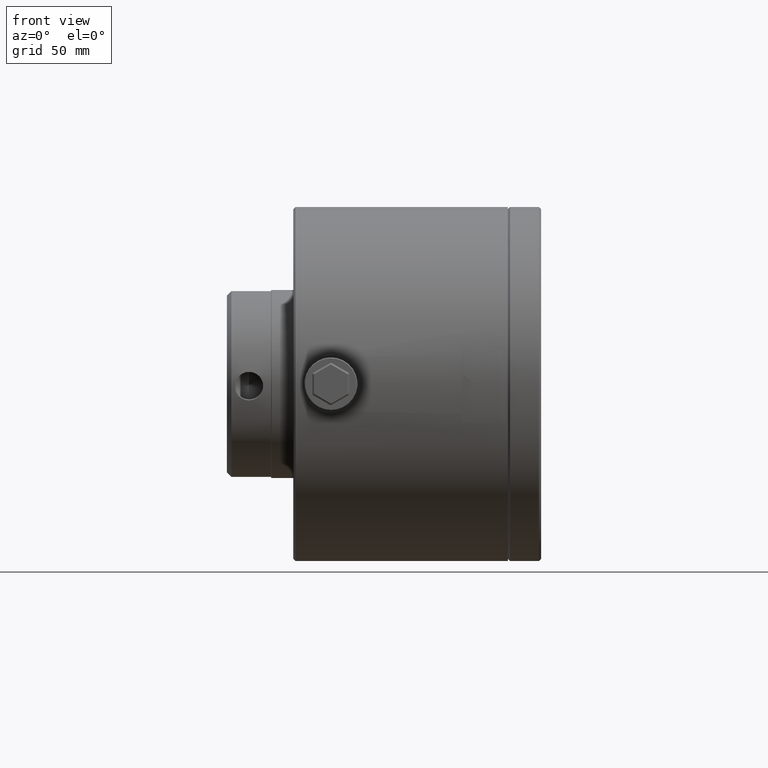
[diagram: clean part render]
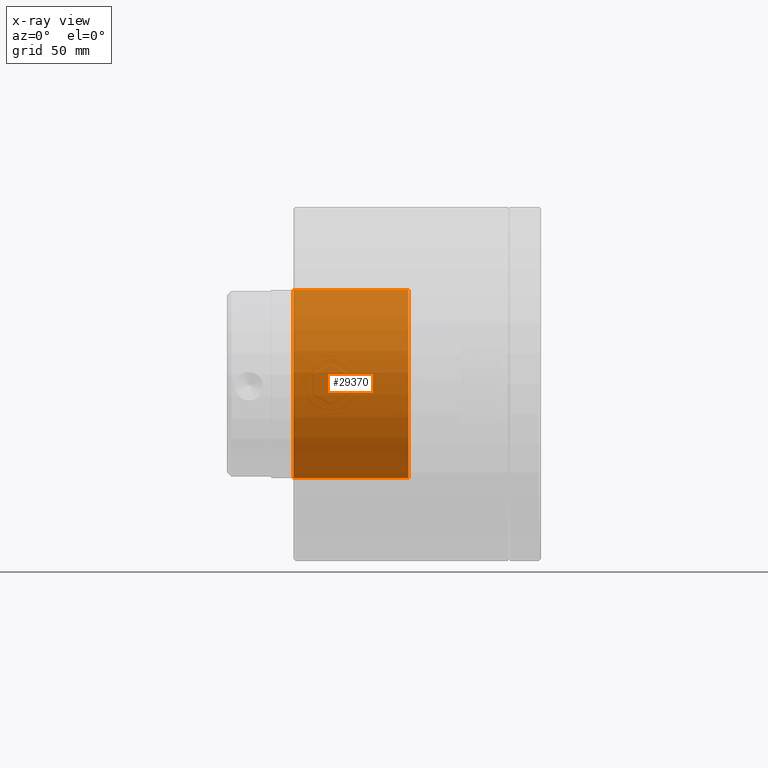
[diagram: x-ray — body ghosted, one internal face saturated and labeled with its STEP entity id]
A machine part, front view, then the same camera in x-ray: the body is ghosted and one INTERNAL B-rep face — a face not visible from any outside direction — is saturated and labeled: STEP entity #29370.
In plain terms, the highlighted cylindrical surface (partial cylindrical patch) has radius 42.5 mm, axis along (1, 0, 0).
Its self-contained STEP definition (entity closure, byte-faithful):
#959 = CIRCLE ( 'NONE', #1429, 42.50000000000000000 ) ;
#989 = CARTESIAN_POINT ( 'NONE',  ( -45.00000000000000000, 0.0000000000000000000, -42.50000000000000000 ) ) ;
#1429 = AXIS2_PLACEMENT_3D ( 'NONE', #20623, #10972, #27897 ) ;
#3011 = EDGE_CURVE ( 'NONE', #26853, #16350, #959, .T. ) ;
#4647 = DIRECTION ( 'NONE',  ( 0.0000000000000000000, 0.0000000000000000000, -1.000000000000000000 ) ) ;
#5441 = CARTESIAN_POINT ( 'NONE',  ( -97.00000000000000000, 5.204748896376250900E-015, 42.50000000000000000 ) ) ;
#6662 = VERTEX_POINT ( 'NONE', #30508 ) ;
#6755 = AXIS2_PLACEMENT_3D ( 'NONE', #7001, #7201, #4647 ) ;
#7001 = CARTESIAN_POINT ( 'NONE',  ( -97.00000000000000000, 0.0000000000000000000, 0.0000000000000000000 ) ) ;
#7201 = DIRECTION ( 'NONE',  ( 1.000000000000000000, 0.0000000000000000000, 0.0000000000000000000 ) ) ;
#8108 = EDGE_LOOP ( 'NONE', ( #12869, #19360, #16775, #30994 ) ) ;
#8776 = CYLINDRICAL_SURFACE ( 'NONE', #24889, 42.50000000000000000 ) ;
#9464 = VECTOR ( 'NONE', #19561, 1000.000000000000000 ) ;
#10972 = DIRECTION ( 'NONE',  ( -1.000000000000000000, -0.0000000000000000000, -0.0000000000000000000 ) ) ;
#12294 = VERTEX_POINT ( 'NONE', #22459 ) ;
#12413 = LINE ( 'NONE', #30345, #15051 ) ;
#12869 = ORIENTED_EDGE ( 'NONE', *, *, #22551, .F. ) ;
#13768 = EDGE_CURVE ( 'NONE', #12294, #26853, #12413, .T. ) ;
#13797 = CARTESIAN_POINT ( 'NONE',  ( -97.00000000000000000, 0.0000000000000000000, 0.0000000000000000000 ) ) ;
#13890 = DIRECTION ( 'NONE',  ( 0.0000000000000000000, 0.0000000000000000000, -1.000000000000000000 ) ) ;
#14989 = CARTESIAN_POINT ( 'NONE',  ( -45.00000000000000000, 5.204748896376250900E-015, 42.50000000000000000 ) ) ;
#15051 = VECTOR ( 'NONE', #23563, 1000.000000000000000 ) ;
#16350 = VERTEX_POINT ( 'NONE', #14989 ) ;
#16775 = ORIENTED_EDGE ( 'NONE', *, *, #3011, .F. ) ;
#17446 = CIRCLE ( 'NONE', #6755, 42.50000000000000000 ) ;
#19360 = ORIENTED_EDGE ( 'NONE', *, *, #23031, .T. ) ;
#19561 = DIRECTION ( 'NONE',  ( 1.000000000000000000, 0.0000000000000000000, 0.0000000000000000000 ) ) ;
#20623 = CARTESIAN_POINT ( 'NONE',  ( -45.00000000000000000, 0.0000000000000000000, 0.0000000000000000000 ) ) ;
#22340 = LINE ( 'NONE', #5441, #9464 ) ;
#22409 = FACE_OUTER_BOUND ( 'NONE', #8108, .T. ) ;
#22459 = CARTESIAN_POINT ( 'NONE',  ( -97.00000000000000000, 0.0000000000000000000, -42.50000000000000000 ) ) ;
#22551 = EDGE_CURVE ( 'NONE', #6662, #12294, #17446, .T. ) ;
#23031 = EDGE_CURVE ( 'NONE', #6662, #16350, #22340, .T. ) ;
#23563 = DIRECTION ( 'NONE',  ( 1.000000000000000000, 0.0000000000000000000, 0.0000000000000000000 ) ) ;
#24889 = AXIS2_PLACEMENT_3D ( 'NONE', #13797, #30712, #13890 ) ;
#26853 = VERTEX_POINT ( 'NONE', #989 ) ;
#27897 = DIRECTION ( 'NONE',  ( 0.0000000000000000000, 0.0000000000000000000, -1.000000000000000000 ) ) ;
#29370 = ADVANCED_FACE ( 'NONE', ( #22409 ), #8776, .F. ) ;
#30345 = CARTESIAN_POINT ( 'NONE',  ( -97.00000000000000000, 0.0000000000000000000, -42.50000000000000000 ) ) ;
#30508 = CARTESIAN_POINT ( 'NONE',  ( -97.00000000000000000, 5.204748896376250900E-015, 42.50000000000000000 ) ) ;
#30712 = DIRECTION ( 'NONE',  ( 1.000000000000000000, 0.0000000000000000000, 0.0000000000000000000 ) ) ;
#30994 = ORIENTED_EDGE ( 'NONE', *, *, #13768, .F. ) ;